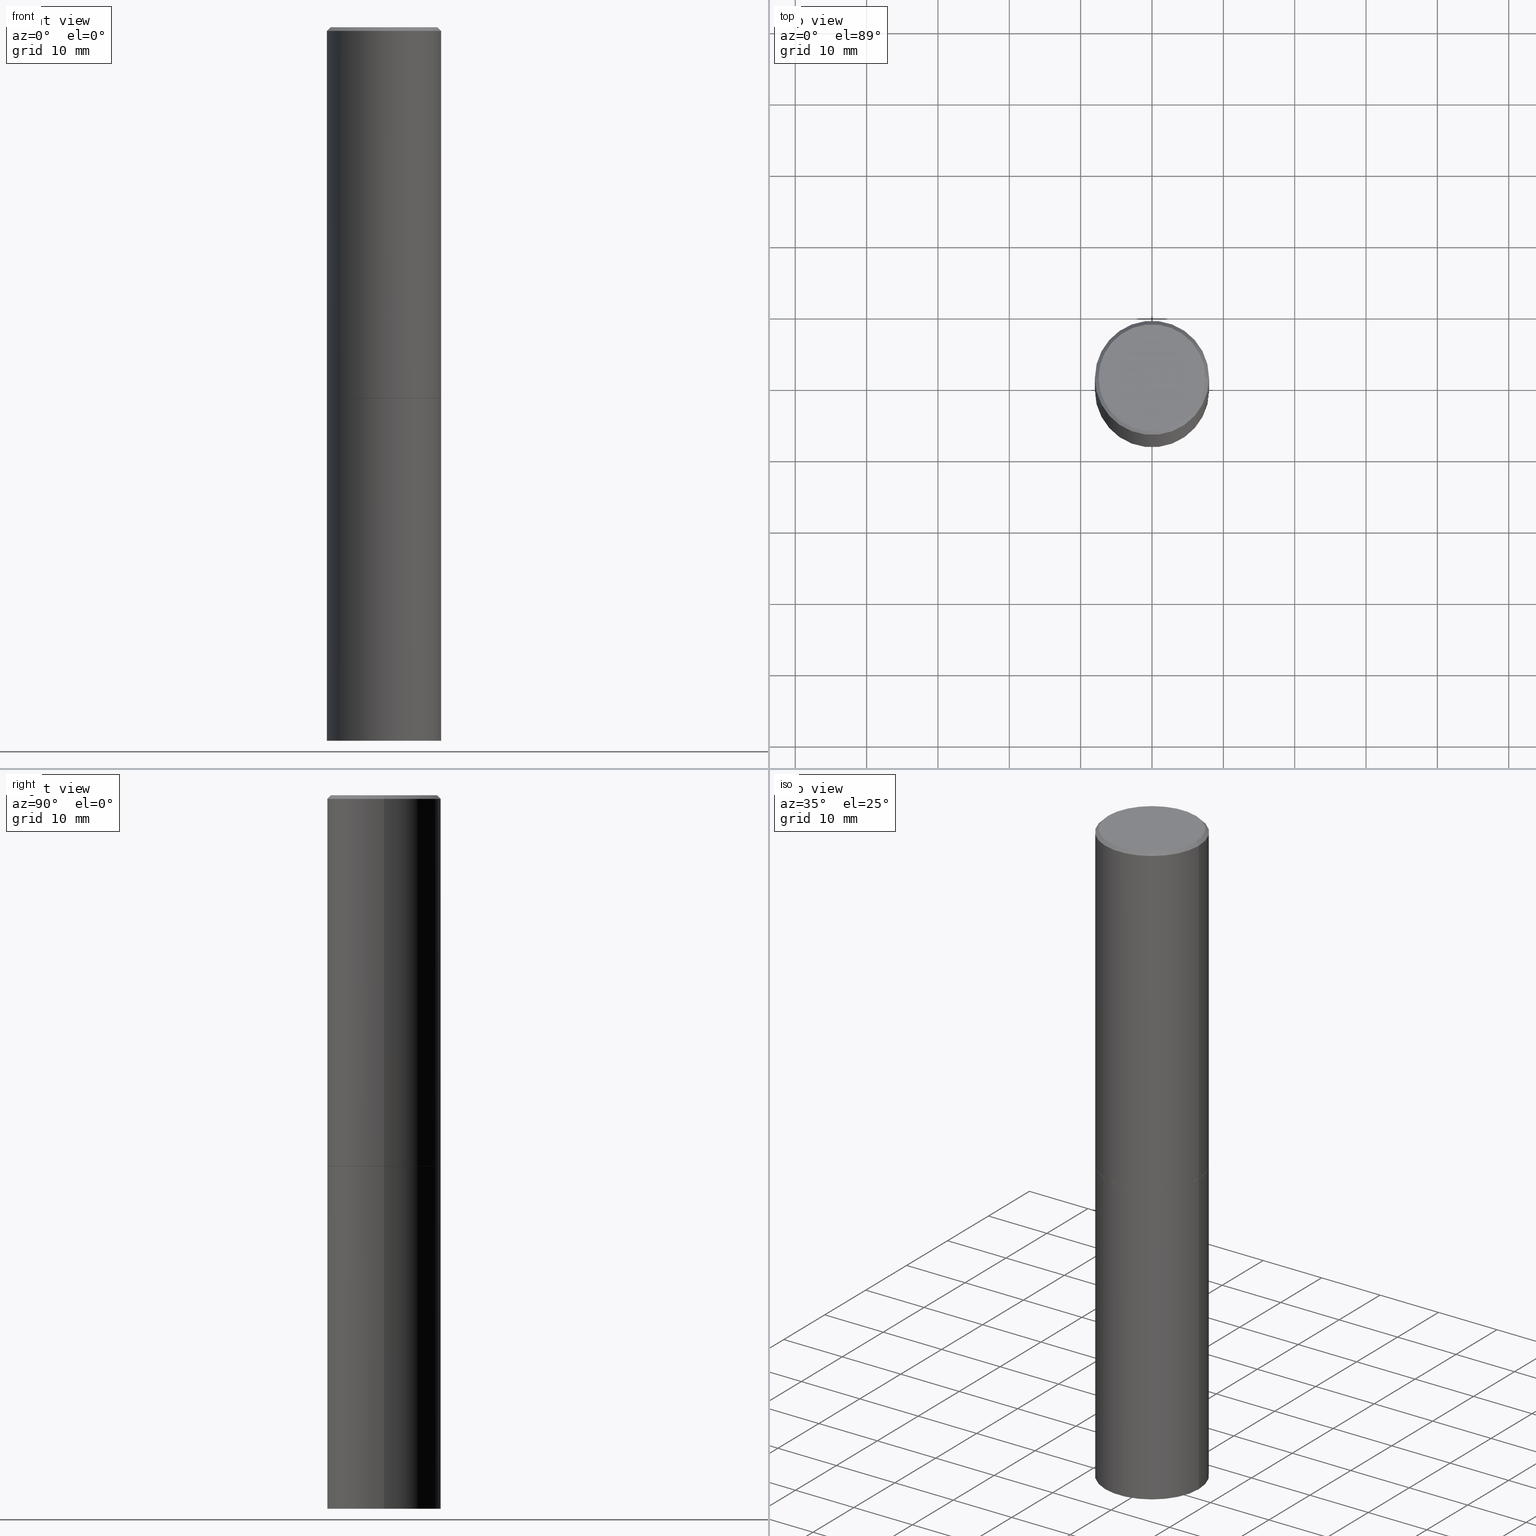
[diagram: canonical four-view strip — front | top / right | iso, engineering-drawing reading convention]
A machine part, canonical four-view strip (front | top / right | iso — engineering-drawing reading convention). The complete STEP part file that produces these views, byte-faithful:
ISO-10303-21;
HEADER;
FILE_DESCRIPTION (( 'STEP AP203' ),
    '1' );
FILE_NAME ('74481.STEP',
    '2024-02-29T11:40:06',
    ( '' ),
    ( '' ),
    'SwSTEP 2.0',
    'SolidWorks 2023',
    '' );
FILE_SCHEMA (( 'CONFIG_CONTROL_DESIGN' ));
ENDSEC;

DATA;
#1 = APPROVAL ( #90, 'UNSPECIFIED' ) ;
#2 = AXIS2_PLACEMENT_3D ( 'NONE', #97, #223, #203 ) ;
#3 = APPROVAL_ROLE ( '' ) ;
#4 = LOCAL_TIME ( 6, 40, 6.000000000000000000, #294 ) ;
#5 = DIRECTION ( 'NONE',  ( -2.445468806185136597E-29, 3.491481338843145583E-15, 1.000000000000000000 ) ) ;
#6 = APPROVAL_DATE_TIME ( #21, #1 ) ;
#7 = DIRECTION ( 'NONE',  ( 1.000000000000000000, -6.982962677686266711E-15, 0.000000000000000000 ) ) ;
#8 = DIRECTION ( 'NONE',  ( -2.445468806185136597E-29, 3.491481338843145583E-15, 1.000000000000000000 ) ) ;
#9 = LINE ( 'NONE', #352, #198 ) ;
#10 = MANIFOLD_SOLID_BREP ( 'Body-Move/Copy2[2]', #112 ) ;
#11 = CARTESIAN_POINT ( 'NONE',  ( 2.199284095337385323E-15, 0.3149499999999862965, -3.937000000000001165 ) ) ;
#12 = CARTESIAN_POINT ( 'NONE',  ( 0.000000000000000000, 0.000000000000000000, 0.000000000000000000 ) ) ;
#13 = CARTESIAN_POINT ( 'NONE',  ( -0.3149500000000000077, -1.369195024882416092E-15, -2.046199999999999797 ) ) ;
#14 = CIRCLE ( 'NONE', #2, 0.3149500000000000077 ) ;
#15 = LOCAL_TIME ( 6, 40, 6.000000000000000000, #95 ) ;
#16 = DIRECTION ( 'NONE',  ( 2.445468806185136597E-29, -3.491481338843145583E-15, -1.000000000000000000 ) ) ;
#17 = VERTEX_POINT ( 'NONE', #304 ) ;
#18 = PERSON_AND_ORGANIZATION ( #19, #242 ) ;
#19 = PERSON ( 'UNSPECIFIED', 'UNSPECIFIED', 'UNSPECIFIED', ('UNSPECIFIED'), ('UNSPECIFIED'), ('UNSPECIFIED') ) ;
#20 = CONICAL_SURFACE ( 'NONE', #174, 0.3139500000000000068, 0.7853981633975507526 ) ;
#21 = DATE_AND_TIME ( #285, #88 ) ;
#22 = CARTESIAN_POINT ( 'NONE',  ( 0.000000000000000000, 0.000000000000000000, 0.000000000000000000 ) ) ;
#23 = DIRECTION ( 'NONE',  ( 0.7071067811865466846, -7.319954787623252890E-15, -0.7071067811865483499 ) ) ;
#24 = ORIENTED_EDGE ( 'NONE', *, *, #111, .T. ) ;
#25 = CIRCLE ( 'NONE', #31, 0.3149500000000000077 ) ;
#26 = CARTESIAN_POINT ( 'NONE',  ( 5.006363740022209999E-29, -7.147760596879685046E-15, -2.047199999999999243 ) ) ;
#27 = APPROVAL_ROLE ( '' ) ;
#28 = EDGE_LOOP ( 'NONE', ( #341, #189, #180, #34 ) ) ;
#29 = UNCERTAINTY_MEASURE_WITH_UNIT (LENGTH_MEASURE( 1.000000000000000082E-05 ), #293, 'distance_accuracy_value', 'NONE');
#30 = SHAPE_DEFINITION_REPRESENTATION ( #199, #65 ) ;
#31 = AXIS2_PLACEMENT_3D ( 'NONE', #103, #215, #76 ) ;
#32 = AXIS2_PLACEMENT_3D ( 'NONE', #22, #91, #172 ) ;
#33 = DIRECTION ( 'NONE',  ( 1.000000000000000000, -6.982962677686267499E-15, 4.876053491004739391E-29 ) ) ;
#34 = ORIENTED_EDGE ( 'NONE', *, *, #116, .F. ) ;
#35 = COORDINATED_UNIVERSAL_TIME_OFFSET ( 5, 0, .BEHIND. ) ;
#36 = ADVANCED_FACE ( 'NONE', ( #138 ), #335, .T. ) ;
#37 = VERTEX_POINT ( 'NONE', #239 ) ;
#38 = APPROVAL_STATUS ( 'not_yet_approved' ) ;
#39 = CARTESIAN_POINT ( 'NONE',  ( 0.3139500000000000068, -9.340061729539288903E-15, -2.047199999999999243 ) ) ;
#40 = DIRECTION ( 'NONE',  ( -2.445468806185136597E-29, 3.491481338843145583E-15, 1.000000000000000000 ) ) ;
#41 = EDGE_CURVE ( 'NONE', #37, #181, #272, .T. ) ;
#42 = EDGE_LOOP ( 'NONE', ( #96, #173 ) ) ;
#43 = AXIS2_PLACEMENT_3D ( 'NONE', #159, #237, #354 ) ;
#44 = AXIS2_PLACEMENT_3D ( 'NONE', #228, #346, #177 ) ;
#45 = DIRECTION ( 'NONE',  ( 0.7071067811866199593, -2.468850131083015945E-15, 0.7071067811864750752 ) ) ;
#46 = ADVANCED_FACE ( 'NONE', ( #329 ), #337, .T. ) ;
#47 = CARTESIAN_POINT ( 'NONE',  ( 0.3149499999999998967, -2.199284095337288688E-15, 1.535751875536929289E-29 ) ) ;
#48 = ADVANCED_FACE ( 'NONE', ( #77 ), #187, .T. ) ;
#49 = DIRECTION ( 'NONE',  ( -2.445468806185136597E-29, 3.491481338843145583E-15, 1.000000000000000000 ) ) ;
#50 = ORIENTED_EDGE ( 'NONE', *, *, #133, .F. ) ;
#51 = CONICAL_SURFACE ( 'NONE', #306, 0.3139500000000000068, 0.7853981633975507526 ) ;
#52 = VERTEX_POINT ( 'NONE', #271 ) ;
#53 = AXIS2_PLACEMENT_3D ( 'NONE', #131, #155, #33 ) ;
#54 = DIRECTION ( 'NONE',  ( -2.445468806185136597E-29, 3.491481338843145583E-15, 1.000000000000000000 ) ) ;
#55 = ORIENTED_EDGE ( 'NONE', *, *, #41, .T. ) ;
#56 = COORDINATED_UNIVERSAL_TIME_OFFSET ( 5, 0, .BEHIND. ) ;
#57 = CLOSED_SHELL ( 'NONE', ( #46, #36, #115, #321 ) ) ;
#58 = DIRECTION ( 'NONE',  ( 2.438088387897960049E-29, -3.491481338843145188E-15, -1.000000000000000000 ) ) ;
#59 = DIRECTION ( 'NONE',  ( -0.7071067811865466846, 2.468850131082247989E-15, -0.7071067811865483499 ) ) ;
#60 = EDGE_LOOP ( 'NONE', ( #253, #61, #230, #309 ) ) ;
#61 = ORIENTED_EDGE ( 'NONE', *, *, #273, .T. ) ;
#62 = DIRECTION ( 'NONE',  ( 1.000000000000000000, -6.982962677686264344E-15, 0.000000000000000000 ) ) ;
#63 = PERSON_AND_ORGANIZATION_ROLE ( 'classification_officer' ) ;
#64 = DIRECTION ( 'NONE',  ( -2.445468806185136597E-29, 3.491481338843145583E-15, 1.000000000000000000 ) ) ;
#65 = ADVANCED_BREP_SHAPE_REPRESENTATION ( '74481', ( #264, #10, #32 ), #323 ) ;
#66 = ADVANCED_FACE ( 'NONE', ( #162 ), #164, .F. ) ;
#67 = CARTESIAN_POINT ( 'NONE',  ( 5.006363740022211120E-29, -7.147760596879686624E-15, -2.047199999999999687 ) ) ;
#68 = ORIENTED_EDGE ( 'NONE', *, *, #281, .F. ) ;
#69 = PERSON_AND_ORGANIZATION ( #19, #242 ) ;
#70 = DIRECTION ( 'NONE',  ( 1.000000000000000000, -6.982962677686264344E-15, 0.000000000000000000 ) ) ;
#71 = VERTEX_POINT ( 'NONE', #13 ) ;
#72 = CARTESIAN_POINT ( 'NONE',  ( -0.3149500000000000077, -8.209006967676138246E-15, -2.047199999999999687 ) ) ;
#73 = CARTESIAN_POINT ( 'NONE',  ( 5.006363740022209999E-29, -7.147760596879685046E-15, -2.047199999999999243 ) ) ;
#74 = ORIENTED_EDGE ( 'NONE', *, *, #94, .T. ) ;
#75 = CC_DESIGN_PERSON_AND_ORGANIZATION_ASSIGNMENT ( #144, #315, ( #247 ) ) ;
#76 = DIRECTION ( 'NONE',  ( 1.000000000000000000, -6.982962677686269866E-15, 0.000000000000000000 ) ) ;
#77 = FACE_OUTER_BOUND ( 'NONE', #348, .T. ) ;
#78 = LOCAL_TIME ( 6, 40, 6.000000000000000000, #148 ) ;
#79 = CYLINDRICAL_SURFACE ( 'NONE', #283, 0.3149499999999998967 ) ;
#80 = FACE_OUTER_BOUND ( 'NONE', #328, .T. ) ;
#81 = CARTESIAN_POINT ( 'NONE',  ( -2.087702828670439639E-46, 2.980686340760894400E-32, 8.537024980200822558E-18 ) ) ;
#82 = CARTESIAN_POINT ( 'NONE',  ( 5.006363740022211120E-29, -7.147760596879686624E-15, -2.047199999999999687 ) ) ;
#83 = EDGE_CURVE ( 'NONE', #170, #200, #165, .T. ) ;
#84 = ORIENTED_EDGE ( 'NONE', *, *, #136, .F. ) ;
#85 = DIRECTION ( 'NONE',  ( -1.000000000000000000, 6.982962677686265922E-15, -4.876176775795935793E-29 ) ) ;
#86 = CARTESIAN_POINT ( 'NONE',  ( 4.890937612370289799E-31, -6.982962677686315028E-17, -0.02000000000000006981 ) ) ;
#87 = CIRCLE ( 'NONE', #209, 0.3149500000000000077 ) ;
#88 = LOCAL_TIME ( 6, 40, 6.000000000000000000, #56 ) ;
#89 = EDGE_CURVE ( 'NONE', #240, #71, #217, .T. ) ;
#90 = APPROVAL_STATUS ( 'not_yet_approved' ) ;
#91 = DIRECTION ( 'NONE',  ( 0.000000000000000000, 0.000000000000000000, 1.000000000000000000 ) ) ;
#92 = AXIS2_PLACEMENT_3D ( 'NONE', #86, #16, #231 ) ;
#93 = AXIS2_PLACEMENT_3D ( 'NONE', #194, #54, #278 ) ;
#94 = EDGE_CURVE ( 'NONE', #200, #324, #343, .T. ) ;
#95 = COORDINATED_UNIVERSAL_TIME_OFFSET ( 5, 0, .BEHIND. ) ;
#96 = ORIENTED_EDGE ( 'NONE', *, *, #320, .F. ) ;
#97 = CARTESIAN_POINT ( 'NONE',  ( 5.003918271216025517E-29, -7.144269115540843617E-15, -2.046199999999999797 ) ) ;
#98 = ADVANCED_FACE ( 'NONE', ( #80 ), #241, .T. ) ;
#99 = CARTESIAN_POINT ( 'NONE',  ( 5.006363740022209999E-29, -7.147760596879685046E-15, -2.047199999999999243 ) ) ;
#100 = CIRCLE ( 'NONE', #284, 0.3139500000000000068 ) ;
#101 = DATE_AND_TIME ( #204, #224 ) ;
#102 = ORIENTED_EDGE ( 'NONE', *, *, #256, .T. ) ;
#103 = CARTESIAN_POINT ( 'NONE',  ( 9.627810689950883669E-29, -1.374596203102546341E-14, -3.937000000000000277 ) ) ;
#104 = CARTESIAN_POINT ( 'NONE',  ( 0.3149500000000000077, -2.199284095337289871E-15, 1.535751875536930130E-29 ) ) ;
#105 = VECTOR ( 'NONE', #23, 39.37007874015748143 ) ;
#106 = APPROVAL_PERSON_ORGANIZATION ( #69, #312, #3 ) ;
#107 = ORIENTED_EDGE ( 'NONE', *, *, #191, .T. ) ;
#108 = DIRECTION ( 'NONE',  ( 1.000000000000000000, -6.982962677686264344E-15, 0.000000000000000000 ) ) ;
#109 = CARTESIAN_POINT ( 'NONE',  ( -0.3139500000000000068, -4.917011677960851648E-15, -2.047199999999999243 ) ) ;
#110 = DIRECTION ( 'NONE',  ( 2.438088387897960049E-29, -3.491481338843145188E-15, -1.000000000000000000 ) ) ;
#111 = EDGE_CURVE ( 'NONE', #181, #52, #317, .T. ) ;
#112 = CLOSED_SHELL ( 'NONE', ( #160, #145, #98, #48, #178, #305, #66, #175 ) ) ;
#113 = AXIS2_PLACEMENT_3D ( 'NONE', #213, #299, #261 ) ;
#115 = ADVANCED_FACE ( 'NONE', ( #220 ), #132, .F. ) ;
#114 = DATE_TIME_ROLE ( 'creation_date' ) ;
#116 = EDGE_CURVE ( 'NONE', #71, #37, #14, .T. ) ;
#117 = AXIS2_PLACEMENT_3D ( 'NONE', #82, #276, #219 ) ;
#118 = EDGE_LOOP ( 'NONE', ( #340, #246 ) ) ;
#119 = CALENDAR_DATE ( 2024, 29, 2 ) ;
#120 = LENGTH_MEASURE_WITH_UNIT ( LENGTH_MEASURE( 0.02539999999999999897 ), #185 );
#121 = AXIS2_PLACEMENT_3D ( 'NONE', #11, #110, #355 ) ;
#122 = DIRECTION ( 'NONE',  ( 2.438088387897960049E-29, -3.491481338843145188E-15, -1.000000000000000000 ) ) ;
#123 = CIRCLE ( 'NONE', #113, 0.3149500000000000077 ) ;
#124 =( NAMED_UNIT ( * ) PLANE_ANGLE_UNIT ( ) SI_UNIT ( $, .RADIAN. ) );
#125 = CALENDAR_DATE ( 2024, 29, 2 ) ;
#126 = DIRECTION ( 'NONE',  ( 1.000000000000000000, -6.982962677686269866E-15, 0.000000000000000000 ) ) ;
#127 = ORIENTED_EDGE ( 'NONE', *, *, #41, .F. ) ;
#128 = FACE_OUTER_BOUND ( 'NONE', #28, .T. ) ;
#129 = CC_DESIGN_DATE_AND_TIME_ASSIGNMENT ( #101, #298, ( #318 ) ) ;
#130 = ORIENTED_EDGE ( 'NONE', *, *, #331, .T. ) ;
#131 = CARTESIAN_POINT ( 'NONE',  ( -2.087702828670439639E-46, 2.980686340760894400E-32, 8.537024980200822558E-18 ) ) ;
#132 = PLANE ( 'NONE',  #179 ) ;
#133 = EDGE_CURVE ( 'NONE', #149, #52, #248, .T. ) ;
#134 = DIRECTION ( 'NONE',  ( -2.445468806185136877E-29, 3.491481338843145188E-15, 1.000000000000000000 ) ) ;
#135 = AXIS2_PLACEMENT_3D ( 'NONE', #267, #64, #7 ) ;
#136 = EDGE_CURVE ( 'NONE', #301, #181, #286, .T. ) ;
#137 = CARTESIAN_POINT ( 'NONE',  ( 0.3149499999999997302, -2.230543471175005478E-15, -0.02000000000000006981 ) ) ;
#138 = FACE_OUTER_BOUND ( 'NONE', #42, .T. ) ;
#139 = ORIENTED_EDGE ( 'NONE', *, *, #331, .F. ) ;
#140 = DIRECTION ( 'NONE',  ( -0.7071067811866199593, 7.493145998870616062E-15, 0.7071067811864750752 ) ) ;
#141 = PRODUCT_RELATED_PRODUCT_CATEGORY ( 'detail', '', ( #247 ) ) ;
#142 = PERSON_AND_ORGANIZATION_ROLE ( 'creator' ) ;
#143 = CC_DESIGN_APPROVAL ( #211, ( #232 ) ) ;
#144 = PERSON_AND_ORGANIZATION ( #19, #242 ) ;
#145 = ADVANCED_FACE ( 'NONE', ( #365 ), #363, .T. ) ;
#146 = EDGE_LOOP ( 'NONE', ( #338, #196 ) ) ;
#147 = APPROVAL_PERSON_ORGANIZATION ( #222, #1, #313 ) ;
#148 = COORDINATED_UNIVERSAL_TIME_OFFSET ( 5, 0, .BEHIND. ) ;
#149 = VERTEX_POINT ( 'NONE', #171 ) ;
#150 = CARTESIAN_POINT ( 'NONE',  ( 0.3149500000000000077, -1.594524612636275486E-14, -3.937000000000000277 ) ) ;
#151 = VECTOR ( 'NONE', #59, 39.37007874015748143 ) ;
#152 = ORIENTED_EDGE ( 'NONE', *, *, #208, .F. ) ;
#153 = ORIENTED_EDGE ( 'NONE', *, *, #89, .T. ) ;
#154 = DATE_AND_TIME ( #125, #4 ) ;
#155 = DIRECTION ( 'NONE',  ( -2.445468806185136597E-29, 3.491481338843145583E-15, 1.000000000000000000 ) ) ;
#156 = DIRECTION ( 'NONE',  ( -2.445468806185136597E-29, 3.491481338843145583E-15, 1.000000000000000000 ) ) ;
#157 = EDGE_LOOP ( 'NONE', ( #74, #296 ) ) ;
#158 = CC_DESIGN_APPROVAL ( #312, ( #318 ) ) ;
#159 = CARTESIAN_POINT ( 'NONE',  ( 4.890937612370289799E-31, -6.982962677686315028E-17, -0.02000000000000006981 ) ) ;
#160 = ADVANCED_FACE ( 'NONE', ( #288 ), #20, .T. ) ;
#161 = CARTESIAN_POINT ( 'NONE',  ( 5.006363740022211680E-29, -7.147760596879688202E-15, -2.047200000000000131 ) ) ;
#162 = FACE_OUTER_BOUND ( 'NONE', #146, .T. ) ;
#163 = CIRCLE ( 'NONE', #195, 0.2949499999999997124 ) ;
#164 = PLANE ( 'NONE',  #336 ) ;
#165 = LINE ( 'NONE', #104, #168 ) ;
#166 = PERSON_AND_ORGANIZATION ( #19, #242 ) ;
#167 = DIRECTION ( 'NONE',  ( -1.000000000000000000, 6.982962677686265922E-15, -4.876176775795935793E-29 ) ) ;
#168 = VECTOR ( 'NONE', #235, 39.37007874015748143 ) ;
#169 = AXIS2_PLACEMENT_3D ( 'NONE', #183, #295, #126 ) ;
#170 = VERTEX_POINT ( 'NONE', #150 ) ;
#171 = CARTESIAN_POINT ( 'NONE',  ( -0.2949499999999997124, 2.094539655171993740E-15, 8.537024980186296424E-18 ) ) ;
#172 = DIRECTION ( 'NONE',  ( 1.000000000000000000, 0.000000000000000000, 0.000000000000000000 ) ) ;
#173 = ORIENTED_EDGE ( 'NONE', *, *, #273, .F. ) ;
#174 = AXIS2_PLACEMENT_3D ( 'NONE', #26, #342, #62 ) ;
#175 = ADVANCED_FACE ( 'NONE', ( #176 ), #291, .F. ) ;
#176 = FACE_OUTER_BOUND ( 'NONE', #118, .T. ) ;
#177 = DIRECTION ( 'NONE',  ( 1.000000000000000000, -6.982962677686266711E-15, 4.876176775795936353E-29 ) ) ;
#178 = ADVANCED_FACE ( 'NONE', ( #193 ), #79, .T. ) ;
#179 = AXIS2_PLACEMENT_3D ( 'NONE', #221, #58, #167 ) ;
#180 = ORIENTED_EDGE ( 'NONE', *, *, #281, .T. ) ;
#181 = VERTEX_POINT ( 'NONE', #137 ) ;
#182 = PERSON_AND_ORGANIZATION ( #19, #242 ) ;
#183 = CARTESIAN_POINT ( 'NONE',  ( 9.627810689950883669E-29, -1.374596203102546341E-14, -3.937000000000000277 ) ) ;
#184 = ORIENTED_EDGE ( 'NONE', *, *, #94, .F. ) ;
#185 =( LENGTH_UNIT ( ) NAMED_UNIT ( * ) SI_UNIT ( $, .METRE. ) );
#186 = CARTESIAN_POINT ( 'NONE',  ( 0.3139500000000000068, -9.340061729539288903E-15, -2.047199999999999243 ) ) ;
#187 = CONICAL_SURFACE ( 'NONE', #43, 0.3149499999999997302, 0.7853981633974471688 ) ;
#188 = DIRECTION ( 'NONE',  ( -2.445468806185136877E-29, 3.491481338843145188E-15, 1.000000000000000000 ) ) ;
#189 = ORIENTED_EDGE ( 'NONE', *, *, #345, .T. ) ;
#190 = LINE ( 'NONE', #268, #314 ) ;
#191 = EDGE_CURVE ( 'NONE', #364, #240, #322, .T. ) ;
#192 = ORIENTED_EDGE ( 'NONE', *, *, #320, .T. ) ;
#193 = FACE_OUTER_BOUND ( 'NONE', #319, .T. ) ;
#194 = CARTESIAN_POINT ( 'NONE',  ( 4.890937612370289799E-31, -6.982962677686315028E-17, -0.02000000000000006981 ) ) ;
#195 = AXIS2_PLACEMENT_3D ( 'NONE', #81, #40, #233 ) ;
#196 = ORIENTED_EDGE ( 'NONE', *, *, #345, .F. ) ;
#197 = DIRECTION ( 'NONE',  ( -2.445468806185136597E-29, 3.491481338843145583E-15, 1.000000000000000000 ) ) ;
#198 = VECTOR ( 'NONE', #188, 39.37007874015748143 ) ;
#199 = PRODUCT_DEFINITION_SHAPE ( 'NONE', 'NONE',  #232 ) ;
#200 = VERTEX_POINT ( 'NONE', #353 ) ;
#201 = DIRECTION ( 'NONE',  ( 1.000000000000000000, -6.982962677686265922E-15, 4.876176775795935232E-29 ) ) ;
#202 = ORIENTED_EDGE ( 'NONE', *, *, #256, .F. ) ;
#203 = DIRECTION ( 'NONE',  ( 1.000000000000000000, -6.982962677686266711E-15, 0.000000000000000000 ) ) ;
#204 = CALENDAR_DATE ( 2024, 29, 2 ) ;
#205 = FACE_OUTER_BOUND ( 'NONE', #60, .T. ) ;
#206 = PERSON_AND_ORGANIZATION ( #19, #242 ) ;
#207 = DIRECTION ( 'NONE',  ( -2.445468806185136597E-29, 3.491481338843145583E-15, 1.000000000000000000 ) ) ;
#208 = EDGE_CURVE ( 'NONE', #301, #149, #163, .T. ) ;
#209 = AXIS2_PLACEMENT_3D ( 'NONE', #67, #207, #229 ) ;
#210 = ORIENTED_EDGE ( 'NONE', *, *, #116, .T. ) ;
#211 = APPROVAL ( #289, 'UNSPECIFIED' ) ;
#212 = ORIENTED_EDGE ( 'NONE', *, *, #292, .F. ) ;
#213 = CARTESIAN_POINT ( 'NONE',  ( 5.003918271216025517E-29, -7.144269115540843617E-15, -2.046199999999999797 ) ) ;
#214 = EDGE_CURVE ( 'NONE', #17, #324, #190, .T. ) ;
#215 = DIRECTION ( 'NONE',  ( -2.445468806185136597E-29, 3.491481338843145583E-15, 1.000000000000000000 ) ) ;
#216 = AXIS2_PLACEMENT_3D ( 'NONE', #73, #49, #108 ) ;
#217 = LINE ( 'NONE', #109, #257 ) ;
#218 = CARTESIAN_POINT ( 'NONE',  ( 0.000000000000000000, 0.000000000000000000, 0.000000000000000000 ) ) ;
#219 = DIRECTION ( 'NONE',  ( 1.000000000000000000, -6.982962677686269866E-15, 0.000000000000000000 ) ) ;
#220 = FACE_OUTER_BOUND ( 'NONE', #157, .T. ) ;
#221 = CARTESIAN_POINT ( 'NONE',  ( 2.199284095337339175E-15, 0.3149499999999928468, -2.047200000000001019 ) ) ;
#222 = PERSON_AND_ORGANIZATION ( #19, #242 ) ;
#223 = DIRECTION ( 'NONE',  ( -2.445468806185136597E-29, 3.491481338843145583E-15, 1.000000000000000000 ) ) ;
#224 = LOCAL_TIME ( 6, 40, 6.000000000000000000, #35 ) ;
#225 = DIRECTION ( 'NONE',  ( -2.445468806185136597E-29, 3.491481338843145583E-15, 1.000000000000000000 ) ) ;
#226 = EDGE_LOOP ( 'NONE', ( #192, #332, #184, #266 ) ) ;
#227 = AXIS2_PLACEMENT_3D ( 'NONE', #255, #122, #85 ) ;
#228 = CARTESIAN_POINT ( 'NONE',  ( 0.000000000000000000, 0.000000000000000000, 0.000000000000000000 ) ) ;
#229 = DIRECTION ( 'NONE',  ( 1.000000000000000000, -6.982962677686269866E-15, 0.000000000000000000 ) ) ;
#230 = ORIENTED_EDGE ( 'NONE', *, *, #83, .T. ) ;
#231 = DIRECTION ( 'NONE',  ( -1.000000000000000000, 6.982962677686266711E-15, 0.000000000000000000 ) ) ;
#232 = PRODUCT_DEFINITION ( 'UNKNOWN', '', #259, #262 ) ;
#233 = DIRECTION ( 'NONE',  ( 1.000000000000000000, -6.982962677686267499E-15, 4.876053491004739391E-29 ) ) ;
#234 = VECTOR ( 'NONE', #45, 39.37007874015748143 ) ;
#235 = DIRECTION ( 'NONE',  ( -2.445468806185136877E-29, 3.491481338843145188E-15, 1.000000000000000000 ) ) ;
#236 = CARTESIAN_POINT ( 'NONE',  ( -0.3139500000000000068, -4.911713223612629246E-15, -2.047199999999999243 ) ) ;
#237 = DIRECTION ( 'NONE',  ( 2.445468806185136597E-29, -3.491481338843145583E-15, -1.000000000000000000 ) ) ;
#238 = APPLICATION_CONTEXT ( 'configuration controlled 3d designs of mechanical parts and assemblies' ) ;
#239 = CARTESIAN_POINT ( 'NONE',  ( 0.3149500000000000077, -9.343553210878133488E-15, -2.046199999999999797 ) ) ;
#240 = VERTEX_POINT ( 'NONE', #236 ) ;
#241 = CONICAL_SURFACE ( 'NONE', #92, 0.3149499999999997302, 0.7853981633974471688 ) ;
#242 = ORGANIZATION ( 'UNSPECIFIED', 'UNSPECIFIED', '' ) ;
#243 = CALENDAR_DATE ( 2024, 29, 2 ) ;
#244 = CARTESIAN_POINT ( 'NONE',  ( -0.3149499999999997302, 2.129454468560424601E-15, -0.02000000000000006981 ) ) ;
#245 = APPLICATION_PROTOCOL_DEFINITION ( 'international standard', 'config_control_design', 1994, #265 ) ;
#246 = ORIENTED_EDGE ( 'NONE', *, *, #208, .T. ) ;
#247 = PRODUCT ( '74481', '74481', '', ( #252 ) ) ;
#248 = LINE ( 'NONE', #244, #151 ) ;
#249 = APPLICATION_PROTOCOL_DEFINITION ( 'international standard', 'config_control_design', 1994, #238 ) ;
#250 = CIRCLE ( 'NONE', #169, 0.3149500000000000077 ) ;
#251 = ORIENTED_EDGE ( 'NONE', *, *, #111, .F. ) ;
#252 = MECHANICAL_CONTEXT ( 'NONE', #238, 'mechanical' ) ;
#253 = ORIENTED_EDGE ( 'NONE', *, *, #214, .F. ) ;
#254 = CARTESIAN_POINT ( 'NONE',  ( 5.006363740022209999E-29, -7.147760596879685046E-15, -2.047199999999999243 ) ) ;
#255 = CARTESIAN_POINT ( 'NONE',  ( 2.059624841783562091E-15, 0.2949499999999997124, -1.025543908401684366E-15 ) ) ;
#256 = EDGE_CURVE ( 'NONE', #71, #52, #9, .T. ) ;
#257 = VECTOR ( 'NONE', #140, 39.37007874015748143 ) ;
#258 = CARTESIAN_POINT ( 'NONE',  ( 0.2949499999999997124, -2.127023677808858103E-15, 8.537024980215462707E-18 ) ) ;
#259 = PRODUCT_DEFINITION_FORMATION_WITH_SPECIFIED_SOURCE ( 'ANY', '', #247, .NOT_KNOWN. ) ;
#260 = PERSON_AND_ORGANIZATION_ROLE ( 'creator' ) ;
#261 = DIRECTION ( 'NONE',  ( 1.000000000000000000, -6.982962677686266711E-15, 0.000000000000000000 ) ) ;
#262 = DESIGN_CONTEXT ( 'detailed design', #265, 'design' ) ;
#263 = PERSON_AND_ORGANIZATION_ROLE ( 'design_supplier' ) ;
#264 = MANIFOLD_SOLID_BREP ( 'Body-Move/Copy2[1]', #57 ) ;
#265 = APPLICATION_CONTEXT ( 'configuration controlled 3d designs of mechanical parts and assemblies' ) ;
#266 = ORIENTED_EDGE ( 'NONE', *, *, #83, .F. ) ;
#267 = CARTESIAN_POINT ( 'NONE',  ( 4.890937612370289799E-31, -6.982962677686315028E-17, -0.02000000000000006981 ) ) ;
#268 = CARTESIAN_POINT ( 'NONE',  ( -0.3149500000000000077, 2.237854346276435590E-15, -1.549218606675782676E-29 ) ) ;
#269 = ORIENTED_EDGE ( 'NONE', *, *, #292, .T. ) ;
#270 = LINE ( 'NONE', #186, #234 ) ;
#271 = CARTESIAN_POINT ( 'NONE',  ( -0.3149499999999997302, 2.129454468560424601E-15, -0.02000000000000006981 ) ) ;
#272 = LINE ( 'NONE', #47, #275 ) ;
#273 = EDGE_CURVE ( 'NONE', #17, #170, #25, .T. ) ;
#274 = DIRECTION ( 'NONE',  ( -2.445468806185136877E-29, 3.491481338843145188E-15, 1.000000000000000000 ) ) ;
#275 = VECTOR ( 'NONE', #134, 39.37007874015748143 ) ;
#276 = DIRECTION ( 'NONE',  ( -2.445468806185136597E-29, 3.491481338843145583E-15, 1.000000000000000000 ) ) ;
#277 = DIMENSIONAL_EXPONENTS ( 1.000000000000000000, 0.000000000000000000, 0.000000000000000000, 0.000000000000000000, 0.000000000000000000, 0.000000000000000000, 0.000000000000000000 ) ;
#278 = DIRECTION ( 'NONE',  ( 1.000000000000000000, -6.982962677686266711E-15, 0.000000000000000000 ) ) ;
#279 = EDGE_LOOP ( 'NONE', ( #107, #153, #139, #68 ) ) ;
#280 = CARTESIAN_POINT ( 'NONE',  ( 0.000000000000000000, 0.000000000000000000, 0.000000000000000000 ) ) ;
#281 = EDGE_CURVE ( 'NONE', #364, #37, #270, .T. ) ;
#282 = DATE_AND_TIME ( #119, #78 ) ;
#283 = AXIS2_PLACEMENT_3D ( 'NONE', #12, #156, #333 ) ;
#284 = AXIS2_PLACEMENT_3D ( 'NONE', #99, #5, #70 ) ;
#285 = CALENDAR_DATE ( 2024, 29, 2 ) ;
#286 = LINE ( 'NONE', #339, #105 ) ;
#287 = CC_DESIGN_PERSON_AND_ORGANIZATION_ASSIGNMENT ( #325, #63, ( #318 ) ) ;
#288 = FACE_OUTER_BOUND ( 'NONE', #279, .T. ) ;
#289 = APPROVAL_STATUS ( 'not_yet_approved' ) ;
#290 = APPROVAL_DATE_TIME ( #154, #312 ) ;
#291 = PLANE ( 'NONE',  #227 ) ;
#292 = EDGE_CURVE ( 'NONE', #52, #181, #362, .T. ) ;
#293 =( CONVERSION_BASED_UNIT ( 'INCH', #120 ) LENGTH_UNIT ( ) NAMED_UNIT ( #277 ) );
#294 = COORDINATED_UNIVERSAL_TIME_OFFSET ( 5, 0, .BEHIND. ) ;
#295 = DIRECTION ( 'NONE',  ( -2.445468806185136597E-29, 3.491481338843145583E-15, 1.000000000000000000 ) ) ;
#296 = ORIENTED_EDGE ( 'NONE', *, *, #310, .T. ) ;
#297 = ORIENTED_EDGE ( 'NONE', *, *, #133, .T. ) ;
#298 = DATE_TIME_ROLE ( 'classification_date' ) ;
#299 = DIRECTION ( 'NONE',  ( -2.445468806185136597E-29, 3.491481338843145583E-15, 1.000000000000000000 ) ) ;
#300 = CC_DESIGN_DATE_AND_TIME_ASSIGNMENT ( #359, #114, ( #232 ) ) ;
#301 = VERTEX_POINT ( 'NONE', #258 ) ;
#302 = AXIS2_PLACEMENT_3D ( 'NONE', #280, #225, #201 ) ;
#303 = CIRCLE ( 'NONE', #53, 0.2949499999999997124 ) ;
#304 = CARTESIAN_POINT ( 'NONE',  ( -0.3149500000000000077, -8.209006967676138246E-15, -3.937000000000000277 ) ) ;
#305 = ADVANCED_FACE ( 'NONE', ( #128 ), #51, .T. ) ;
#306 = AXIS2_PLACEMENT_3D ( 'NONE', #254, #8, #344 ) ;
#307 = APPROVAL_PERSON_ORGANIZATION ( #166, #211, #27 ) ;
#308 = DIRECTION ( 'NONE',  ( 1.000000000000000000, -6.982962677686266711E-15, 4.876176775795936353E-29 ) ) ;
#309 = ORIENTED_EDGE ( 'NONE', *, *, #310, .F. ) ;
#310 = EDGE_CURVE ( 'NONE', #324, #200, #87, .T. ) ;
#311 = DIRECTION ( 'NONE',  ( 1.000000000000000000, -6.982962677686265922E-15, 4.876176775795935793E-29 ) ) ;
#312 = APPROVAL ( #38, 'UNSPECIFIED' ) ;
#313 = APPROVAL_ROLE ( '' ) ;
#314 = VECTOR ( 'NONE', #274, 39.37007874015748143 ) ;
#315 = PERSON_AND_ORGANIZATION_ROLE ( 'design_owner' ) ;
#316 = ORIENTED_EDGE ( 'NONE', *, *, #366, .F. ) ;
#317 = CIRCLE ( 'NONE', #93, 0.3149499999999997302 ) ;
#318 = SECURITY_CLASSIFICATION ( '', '', #349 ) ;
#319 = EDGE_LOOP ( 'NONE', ( #202, #210, #55, #212 ) ) ;
#320 = EDGE_CURVE ( 'NONE', #170, #17, #250, .T. ) ;
#321 = ADVANCED_FACE ( 'NONE', ( #205 ), #327, .T. ) ;
#322 = CIRCLE ( 'NONE', #216, 0.3139500000000000068 ) ;
#323 =( GEOMETRIC_REPRESENTATION_CONTEXT ( 3 ) GLOBAL_UNCERTAINTY_ASSIGNED_CONTEXT ( ( #29 ) ) GLOBAL_UNIT_ASSIGNED_CONTEXT ( ( #293, #124, #357 ) ) REPRESENTATION_CONTEXT ( 'NONE', 'WORKASPACE' ) );
#324 = VERTEX_POINT ( 'NONE', #72 ) ;
#325 = PERSON_AND_ORGANIZATION ( #19, #242 ) ;
#326 = CC_DESIGN_PERSON_AND_ORGANIZATION_ASSIGNMENT ( #182, #263, ( #259 ) ) ;
#327 = CYLINDRICAL_SURFACE ( 'NONE', #44, 0.3149500000000000077 ) ;
#328 = EDGE_LOOP ( 'NONE', ( #152, #351, #24, #50 ) ) ;
#329 = FACE_OUTER_BOUND ( 'NONE', #226, .T. ) ;
#330 = AXIS2_PLACEMENT_3D ( 'NONE', #218, #197, #308 ) ;
#331 = EDGE_CURVE ( 'NONE', #37, #71, #123, .T. ) ;
#332 = ORIENTED_EDGE ( 'NONE', *, *, #214, .T. ) ;
#333 = DIRECTION ( 'NONE',  ( 1.000000000000000000, -6.982962677686265922E-15, 4.876176775795935232E-29 ) ) ;
#334 = DIRECTION ( 'NONE',  ( -2.438088387897960049E-29, 3.491481338843145188E-15, 1.000000000000000000 ) ) ;
#335 = PLANE ( 'NONE',  #121 ) ;
#336 = AXIS2_PLACEMENT_3D ( 'NONE', #161, #334, #311 ) ;
#337 = CYLINDRICAL_SURFACE ( 'NONE', #330, 0.3149500000000000077 ) ;
#338 = ORIENTED_EDGE ( 'NONE', *, *, #191, .F. ) ;
#339 = CARTESIAN_POINT ( 'NONE',  ( 0.3149499999999997302, -2.230543471175005478E-15, -0.02000000000000006981 ) ) ;
#340 = ORIENTED_EDGE ( 'NONE', *, *, #366, .T. ) ;
#341 = ORIENTED_EDGE ( 'NONE', *, *, #89, .F. ) ;
#342 = DIRECTION ( 'NONE',  ( -2.445468806185136597E-29, 3.491481338843145583E-15, 1.000000000000000000 ) ) ;
#343 = CIRCLE ( 'NONE', #117, 0.3149500000000000077 ) ;
#344 = DIRECTION ( 'NONE',  ( 1.000000000000000000, -6.982962677686264344E-15, 0.000000000000000000 ) ) ;
#345 = EDGE_CURVE ( 'NONE', #240, #364, #100, .T. ) ;
#346 = DIRECTION ( 'NONE',  ( -2.445468806185136597E-29, 3.491481338843145583E-15, 1.000000000000000000 ) ) ;
#347 = CC_DESIGN_PERSON_AND_ORGANIZATION_ASSIGNMENT ( #206, #260, ( #259 ) ) ;
#348 = EDGE_LOOP ( 'NONE', ( #84, #316, #297, #269 ) ) ;
#349 = SECURITY_CLASSIFICATION_LEVEL ( 'unclassified' ) ;
#350 = CC_DESIGN_APPROVAL ( #1, ( #259 ) ) ;
#351 = ORIENTED_EDGE ( 'NONE', *, *, #136, .T. ) ;
#352 = CARTESIAN_POINT ( 'NONE',  ( -0.3149499999999998967, 2.237854346276434801E-15, -1.549218606675782116E-29 ) ) ;
#353 = CARTESIAN_POINT ( 'NONE',  ( 0.3149500000000000077, -9.347044692216978073E-15, -2.047199999999999687 ) ) ;
#354 = DIRECTION ( 'NONE',  ( -1.000000000000000000, 6.982962677686266711E-15, 0.000000000000000000 ) ) ;
#355 = DIRECTION ( 'NONE',  ( -1.000000000000000000, 6.982962677686265922E-15, -4.876176775795935793E-29 ) ) ;
#356 = EDGE_LOOP ( 'NONE', ( #130, #102, #251, #127 ) ) ;
#357 =( NAMED_UNIT ( * ) SI_UNIT ( $, .STERADIAN. ) SOLID_ANGLE_UNIT ( ) );
#358 = CC_DESIGN_SECURITY_CLASSIFICATION ( #318, ( #259 ) ) ;
#359 = DATE_AND_TIME ( #243, #15 ) ;
#360 = APPROVAL_DATE_TIME ( #282, #211 ) ;
#361 = CC_DESIGN_PERSON_AND_ORGANIZATION_ASSIGNMENT ( #18, #142, ( #232 ) ) ;
#362 = CIRCLE ( 'NONE', #135, 0.3149499999999997302 ) ;
#363 = CYLINDRICAL_SURFACE ( 'NONE', #302, 0.3149499999999998967 ) ;
#364 = VERTEX_POINT ( 'NONE', #39 ) ;
#365 = FACE_OUTER_BOUND ( 'NONE', #356, .T. ) ;
#366 = EDGE_CURVE ( 'NONE', #149, #301, #303, .T. ) ;
ENDSEC;
END-ISO-10303-21;
